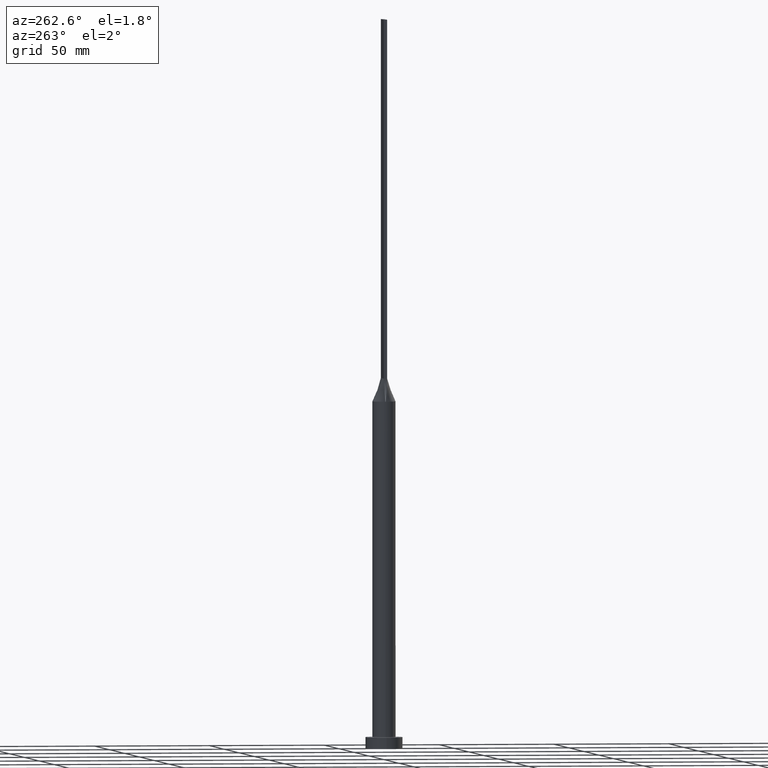
[diagram: clean part render]
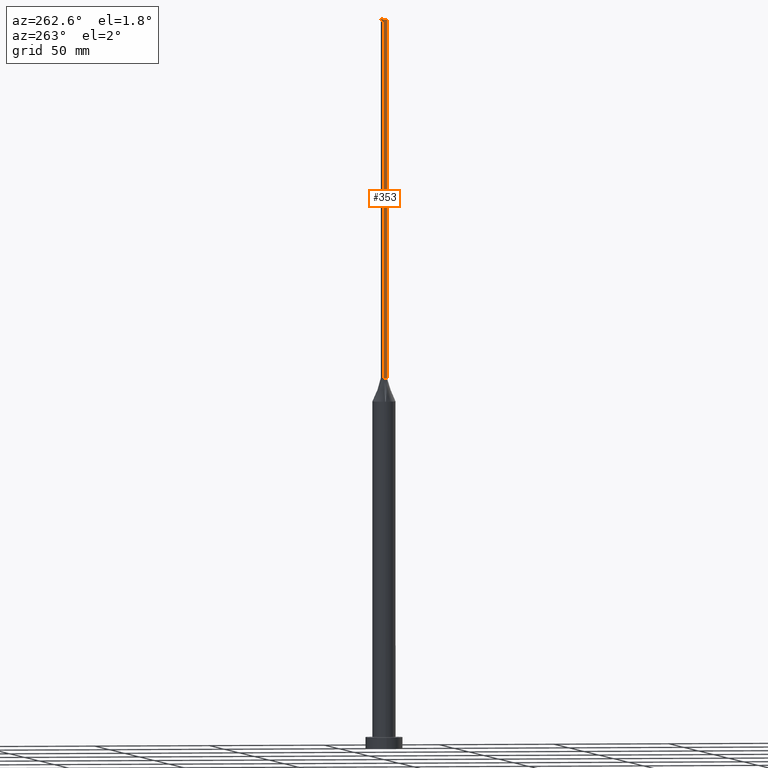
[diagram: same view with one face highlighted and labeled with its STEP entity id]
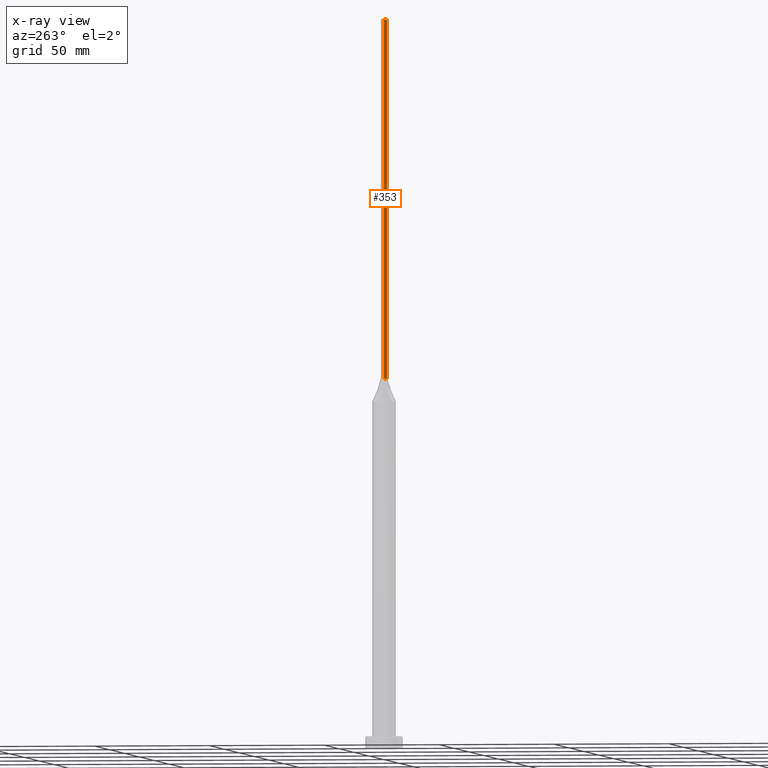
[diagram: x-ray of the same camera — body ghosted, the highlighted face saturated]
A machine part, auxiliary view. The second image highlights one B-rep face of the part: STEP entity #353.
The next image is the same camera in x-ray: the body ghosted, the highlighted face saturated — about 0% of this face is hidden behind the body in this view.
In plain terms, the highlighted planar face has unit normal (1, 0, -0).
Its self-contained STEP definition (entity closure, byte-faithful):
#10 = ORIENTED_EDGE ( 'NONE', *, *, #487, .T. ) ;
#26 = EDGE_CURVE ( 'NONE', #263, #218, #243, .T. ) ;
#32 = DIRECTION ( 'NONE',  ( -0.000000000000000000, 0.000000000000000000, -1.000000000000000000 ) ) ;
#35 = PLANE ( 'NONE',  #41 ) ;
#38 = DIRECTION ( 'NONE',  ( -0.000000000000000000, -0.000000000000000000, -1.000000000000000000 ) ) ;
#41 = AXIS2_PLACEMENT_3D ( 'NONE', #370, #374, #32 ) ;
#44 = CARTESIAN_POINT ( 'NONE',  ( -4.750000000000000000, 0.7500000000000002220, 160.0000000000000000 ) ) ;
#113 = VECTOR ( 'NONE', #390, 1000.000000000000000 ) ;
#157 = CARTESIAN_POINT ( 'NONE',  ( -4.750000000000000000, -0.7499999999999991118, 160.0000000000000000 ) ) ;
#159 = CARTESIAN_POINT ( 'NONE',  ( -4.750000000000000000, 0.7500000000000002220, 315.0000000000000000 ) ) ;
#164 = ORIENTED_EDGE ( 'NONE', *, *, #26, .F. ) ;
#171 = LINE ( 'NONE', #318, #287 ) ;
#174 = DIRECTION ( 'NONE',  ( 0.000000000000000000, -1.000000000000000000, 0.000000000000000000 ) ) ;
#218 = VERTEX_POINT ( 'NONE', #345 ) ;
#228 = VECTOR ( 'NONE', #38, 1000.000000000000000 ) ;
#242 = LINE ( 'NONE', #383, #228 ) ;
#243 = LINE ( 'NONE', #568, #113 ) ;
#263 = VERTEX_POINT ( 'NONE', #159 ) ;
#264 = VECTOR ( 'NONE', #409, 1000.000000000000000 ) ;
#282 = VERTEX_POINT ( 'NONE', #157 ) ;
#287 = VECTOR ( 'NONE', #174, 1000.000000000000000 ) ;
#318 = CARTESIAN_POINT ( 'NONE',  ( -4.750000000000000000, 0.7500000000000002220, 160.0000000000000000 ) ) ;
#342 = EDGE_CURVE ( 'NONE', #417, #282, #171, .T. ) ;
#345 = CARTESIAN_POINT ( 'NONE',  ( -4.750000000000000000, -0.7499999999999991118, 315.0000000000000000 ) ) ;
#353 = ADVANCED_FACE ( 'NONE', ( #412 ), #35, .F. ) ;
#370 = CARTESIAN_POINT ( 'NONE',  ( -4.750000000000000000, 0.7500000000000002220, 315.0000000000000000 ) ) ;
#374 = DIRECTION ( 'NONE',  ( 1.000000000000000000, 0.000000000000000000, -0.000000000000000000 ) ) ;
#383 = CARTESIAN_POINT ( 'NONE',  ( -4.750000000000000000, 0.7500000000000002220, 315.0000000000000000 ) ) ;
#390 = DIRECTION ( 'NONE',  ( 0.000000000000000000, -1.000000000000000000, 0.000000000000000000 ) ) ;
#400 = EDGE_LOOP ( 'NONE', ( #413, #591, #164, #10 ) ) ;
#409 = DIRECTION ( 'NONE',  ( -0.000000000000000000, -0.000000000000000000, -1.000000000000000000 ) ) ;
#412 = FACE_OUTER_BOUND ( 'NONE', #400, .T. ) ;
#413 = ORIENTED_EDGE ( 'NONE', *, *, #342, .T. ) ;
#417 = VERTEX_POINT ( 'NONE', #44 ) ;
#487 = EDGE_CURVE ( 'NONE', #263, #417, #242, .T. ) ;
#507 = LINE ( 'NONE', #604, #264 ) ;
#568 = CARTESIAN_POINT ( 'NONE',  ( -4.750000000000000000, 0.7500000000000002220, 315.0000000000000000 ) ) ;
#584 = EDGE_CURVE ( 'NONE', #218, #282, #507, .T. ) ;
#591 = ORIENTED_EDGE ( 'NONE', *, *, #584, .F. ) ;
#604 = CARTESIAN_POINT ( 'NONE',  ( -4.750000000000000000, -0.7499999999999991118, 315.0000000000000000 ) ) ;